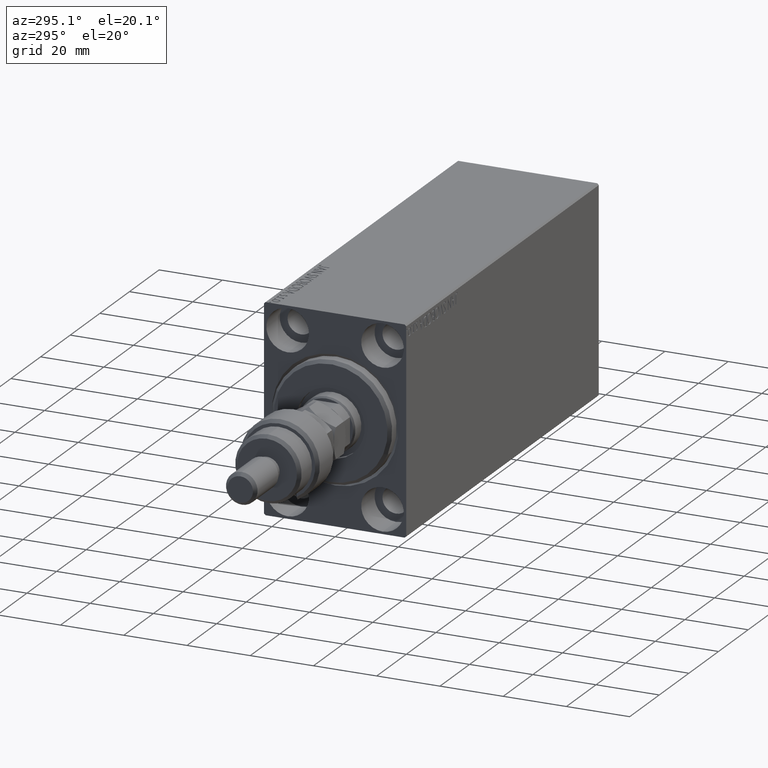
[diagram: clean part render]
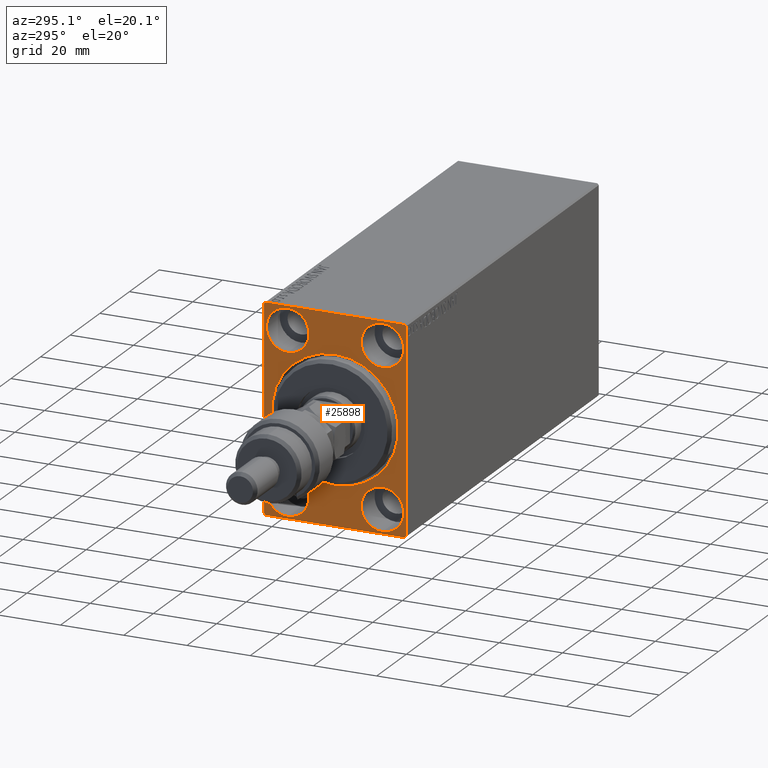
[diagram: same view with one face highlighted and labeled with its STEP entity id]
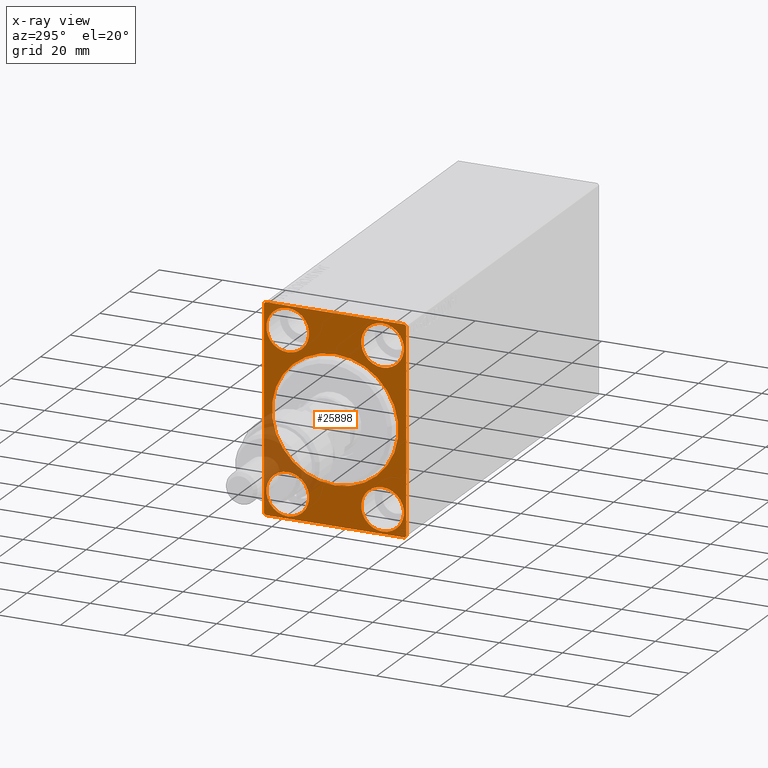
[diagram: x-ray of the same camera — body ghosted, the highlighted face saturated]
A machine part, auxiliary view. The second image highlights one B-rep face of the part: STEP entity #25898.
The next image is the same camera in x-ray: the body ghosted, the highlighted face saturated — about 13% of this face is hidden behind the body in this view.
In plain terms, the highlighted planar face has unit normal (1, 0, 0).
Its self-contained STEP definition (entity closure, byte-faithful):
#367 = CARTESIAN_POINT ( 'NONE',  ( 0.000000000000000000, -14.99999999999999645, 25.00000000000000000 ) ) ;
#705 = ORIENTED_EDGE ( 'NONE', *, *, #26048, .T. ) ;
#767 = DIRECTION ( 'NONE',  ( 0.000000000000000000, 0.000000000000000000, 1.000000000000000000 ) ) ;
#1197 = DIRECTION ( 'NONE',  ( 0.000000000000000000, 0.000000000000000000, 1.000000000000000000 ) ) ;
#1326 = EDGE_CURVE ( 'NONE', #7081, #15602, #21490, .T. ) ;
#1345 = DIRECTION ( 'NONE',  ( 1.000000000000000000, 0.000000000000000000, 0.000000000000000000 ) ) ;
#1741 = AXIS2_PLACEMENT_3D ( 'NONE', #23970, #34328, #38341 ) ;
#1795 = CARTESIAN_POINT ( 'NONE',  ( 0.000000000000000000, 22.00000000000002132, 32.50000000000000000 ) ) ;
#2358 = FACE_BOUND ( 'NONE', #26141, .T. ) ;
#2482 = CARTESIAN_POINT ( 'NONE',  ( 0.000000000000000000, -22.50000000000000711, 32.49999999999999289 ) ) ;
#2609 = VERTEX_POINT ( 'NONE', #45670 ) ;
#2643 = EDGE_LOOP ( 'NONE', ( #35283, #25397 ) ) ;
#3245 = FACE_OUTER_BOUND ( 'NONE', #25453, .T. ) ;
#3533 = CARTESIAN_POINT ( 'NONE',  ( 0.000000000000000000, -15.00000000000000355, -25.00000000000000000 ) ) ;
#3731 = EDGE_LOOP ( 'NONE', ( #43376, #38233 ) ) ;
#3913 = CARTESIAN_POINT ( 'NONE',  ( 0.000000000000000000, 22.49999999999999289, 32.00000000000004974 ) ) ;
#4154 = DIRECTION ( 'NONE',  ( 1.000000000000000000, 0.000000000000000000, 0.000000000000000000 ) ) ;
#4270 = CIRCLE ( 'NONE', #15543, 6.749999999999999112 ) ;
#4395 = DIRECTION ( 'NONE',  ( -0.000000000000000000, 0.7071067811865622277, -0.7071067811865328068 ) ) ;
#4617 = ORIENTED_EDGE ( 'NONE', *, *, #1326, .F. ) ;
#4831 = CIRCLE ( 'NONE', #37955, 6.749999999999999112 ) ;
#5072 = VECTOR ( 'NONE', #27044, 1000.000000000000114 ) ;
#5207 = VECTOR ( 'NONE', #23398, 1000.000000000000114 ) ;
#5352 = CIRCLE ( 'NONE', #12896, 20.00000000000000355 ) ;
#5765 = VERTEX_POINT ( 'NONE', #31590 ) ;
#5971 = AXIS2_PLACEMENT_3D ( 'NONE', #41402, #1345, #20210 ) ;
#6253 = LINE ( 'NONE', #2482, #10561 ) ;
#6663 = VERTEX_POINT ( 'NONE', #7445 ) ;
#6835 = ORIENTED_EDGE ( 'NONE', *, *, #45509, .F. ) ;
#6914 = AXIS2_PLACEMENT_3D ( 'NONE', #40349, #8997, #767 ) ;
#7081 = VERTEX_POINT ( 'NONE', #21902 ) ;
#7287 = DIRECTION ( 'NONE',  ( 0.000000000000000000, -1.067522139062650425E-16, 1.000000000000000000 ) ) ;
#7445 = CARTESIAN_POINT ( 'NONE',  ( 0.000000000000000000, -15.00000000000000355, -31.75000000000000000 ) ) ;
#7464 = LINE ( 'NONE', #43744, #15162 ) ;
#8331 = EDGE_CURVE ( 'NONE', #6663, #23838, #30714, .T. ) ;
#8335 = CARTESIAN_POINT ( 'NONE',  ( 0.000000000000000000, 22.50000000000000000, -32.00000000000002132 ) ) ;
#8392 = DIRECTION ( 'NONE',  ( -0.000000000000000000, -0.7071067811865376918, 0.7071067811865573427 ) ) ;
#8605 = CIRCLE ( 'NONE', #35677, 6.749999999999999112 ) ;
#8973 = VERTEX_POINT ( 'NONE', #1795 ) ;
#8997 = DIRECTION ( 'NONE',  ( -1.000000000000000000, 0.000000000000000000, 0.000000000000000000 ) ) ;
#9424 = FACE_BOUND ( 'NONE', #17125, .T. ) ;
#10299 = PLANE ( 'NONE',  #34568 ) ;
#10556 = CARTESIAN_POINT ( 'NONE',  ( 0.000000000000000000, -15.00000000000000355, -18.25000000000000355 ) ) ;
#10561 = VECTOR ( 'NONE', #28637, 1000.000000000000000 ) ;
#10948 = EDGE_CURVE ( 'NONE', #15122, #5765, #23254, .T. ) ;
#11099 = EDGE_CURVE ( 'NONE', #22692, #29209, #45096, .T. ) ;
#11231 = CARTESIAN_POINT ( 'NONE',  ( 0.000000000000000000, 0.000000000000000000, 0.000000000000000000 ) ) ;
#11543 = CARTESIAN_POINT ( 'NONE',  ( 0.000000000000000000, 22.00000000000000000, -32.50000000000000711 ) ) ;
#12207 = CARTESIAN_POINT ( 'NONE',  ( 0.000000000000000000, -22.50000000000000711, 31.99999999999999289 ) ) ;
#12887 = VECTOR ( 'NONE', #7287, 1000.000000000000000 ) ;
#12896 = AXIS2_PLACEMENT_3D ( 'NONE', #11231, #4154, #39741 ) ;
#13398 = VERTEX_POINT ( 'NONE', #38684 ) ;
#13441 = DIRECTION ( 'NONE',  ( -1.000000000000000000, 0.000000000000000000, 0.000000000000000000 ) ) ;
#14102 = ORIENTED_EDGE ( 'NONE', *, *, #21025, .T. ) ;
#14542 = VERTEX_POINT ( 'NONE', #44324 ) ;
#14893 = CARTESIAN_POINT ( 'NONE',  ( 0.000000000000000000, -14.99999999999999645, 25.00000000000000000 ) ) ;
#14953 = ORIENTED_EDGE ( 'NONE', *, *, #32163, .T. ) ;
#15027 = ORIENTED_EDGE ( 'NONE', *, *, #42059, .F. ) ;
#15122 = VERTEX_POINT ( 'NONE', #35166 ) ;
#15162 = VECTOR ( 'NONE', #8392, 1000.000000000000114 ) ;
#15543 = AXIS2_PLACEMENT_3D ( 'NONE', #3533, #13441, #27811 ) ;
#15602 = VERTEX_POINT ( 'NONE', #11543 ) ;
#15944 = EDGE_CURVE ( 'NONE', #2609, #35827, #44636, .T. ) ;
#16745 = FACE_BOUND ( 'NONE', #3731, .T. ) ;
#17125 = EDGE_LOOP ( 'NONE', ( #18087, #6835 ) ) ;
#17344 = EDGE_CURVE ( 'NONE', #35827, #2609, #4831, .T. ) ;
#17544 = EDGE_CURVE ( 'NONE', #29209, #22692, #8605, .T. ) ;
#17770 = EDGE_CURVE ( 'NONE', #23838, #6663, #4270, .T. ) ;
#18017 = VECTOR ( 'NONE', #4395, 1000.000000000000000 ) ;
#18087 = ORIENTED_EDGE ( 'NONE', *, *, #43081, .F. ) ;
#18569 = ORIENTED_EDGE ( 'NONE', *, *, #28390, .F. ) ;
#18774 = AXIS2_PLACEMENT_3D ( 'NONE', #367, #29573, #43262 ) ;
#19253 = VERTEX_POINT ( 'NONE', #43316 ) ;
#19434 = LINE ( 'NONE', #27194, #21681 ) ;
#19485 = VERTEX_POINT ( 'NONE', #3913 ) ;
#19671 = DIRECTION ( 'NONE',  ( 0.000000000000000000, -1.000000000000000000, -1.541976423090495387E-16 ) ) ;
#19760 = CIRCLE ( 'NONE', #33296, 6.749999999999999112 ) ;
#19843 = ORIENTED_EDGE ( 'NONE', *, *, #21815, .F. ) ;
#20210 = DIRECTION ( 'NONE',  ( 0.000000000000000000, 0.000000000000000000, -1.000000000000000000 ) ) ;
#20281 = FACE_BOUND ( 'NONE', #36316, .T. ) ;
#20647 = CARTESIAN_POINT ( 'NONE',  ( 0.000000000000000000, -22.50000000000000711, -32.00000000000002132 ) ) ;
#20686 = ORIENTED_EDGE ( 'NONE', *, *, #25570, .T. ) ;
#21025 = EDGE_CURVE ( 'NONE', #14542, #19253, #44488, .T. ) ;
#21218 = CIRCLE ( 'NONE', #6914, 6.749999999999999112 ) ;
#21490 = LINE ( 'NONE', #35604, #37348 ) ;
#21681 = VECTOR ( 'NONE', #19671, 1000.000000000000000 ) ;
#21815 = EDGE_CURVE ( 'NONE', #8973, #19253, #19434, .T. ) ;
#21902 = CARTESIAN_POINT ( 'NONE',  ( 0.000000000000000000, -22.00000000000003197, -32.50000000000000711 ) ) ;
#22692 = VERTEX_POINT ( 'NONE', #35880 ) ;
#23183 = CARTESIAN_POINT ( 'NONE',  ( 0.000000000000000000, -15.00000000000000355, -25.00000000000000000 ) ) ;
#23254 = CIRCLE ( 'NONE', #5971, 20.00000000000000355 ) ;
#23398 = DIRECTION ( 'NONE',  ( 0.000000000000000000, -0.7071067811865474617, -0.7071067811865474617 ) ) ;
#23838 = VERTEX_POINT ( 'NONE', #10556 ) ;
#23869 = DIRECTION ( 'NONE',  ( 0.000000000000000000, 0.000000000000000000, 1.000000000000000000 ) ) ;
#23970 = CARTESIAN_POINT ( 'NONE',  ( 0.000000000000000000, 15.00000000000000355, 25.00000000000000000 ) ) ;
#24385 = ORIENTED_EDGE ( 'NONE', *, *, #17544, .F. ) ;
#25155 = DIRECTION ( 'NONE',  ( 0.000000000000000000, 0.000000000000000000, -1.000000000000000000 ) ) ;
#25186 = LINE ( 'NONE', #39554, #12887 ) ;
#25369 = ORIENTED_EDGE ( 'NONE', *, *, #10948, .T. ) ;
#25397 = ORIENTED_EDGE ( 'NONE', *, *, #8331, .F. ) ;
#25453 = EDGE_LOOP ( 'NONE', ( #18569, #14102, #19843, #705, #15027, #20686, #4617, #14953 ) ) ;
#25570 = EDGE_CURVE ( 'NONE', #37897, #15602, #44607, .T. ) ;
#25733 = DIRECTION ( 'NONE',  ( -1.000000000000000000, 0.000000000000000000, 0.000000000000000000 ) ) ;
#25898 = ADVANCED_FACE ( 'NONE', ( #20281, #9424, #2358, #16745, #39053, #3245 ), #10299, .F. ) ;
#26048 = EDGE_CURVE ( 'NONE', #8973, #19485, #39516, .T. ) ;
#26141 = EDGE_LOOP ( 'NONE', ( #40222, #24385 ) ) ;
#26546 = ORIENTED_EDGE ( 'NONE', *, *, #32129, .T. ) ;
#27044 = DIRECTION ( 'NONE',  ( -0.000000000000000000, 0.7071067811865474617, 0.7071067811865474617 ) ) ;
#27194 = CARTESIAN_POINT ( 'NONE',  ( 0.000000000000000000, 22.49999999999999289, 32.50000000000000000 ) ) ;
#27811 = DIRECTION ( 'NONE',  ( 0.000000000000000000, 0.000000000000000000, 1.000000000000000000 ) ) ;
#28288 = CARTESIAN_POINT ( 'NONE',  ( 0.000000000000000000, 14.99999999999999645, -25.00000000000000000 ) ) ;
#28390 = EDGE_CURVE ( 'NONE', #14542, #28474, #6253, .T. ) ;
#28474 = VERTEX_POINT ( 'NONE', #20647 ) ;
#28539 = CARTESIAN_POINT ( 'NONE',  ( 0.000000000000000000, 14.99999999999999645, -31.75000000000000000 ) ) ;
#28637 = DIRECTION ( 'NONE',  ( 0.000000000000000000, 0.000000000000000000, -1.000000000000000000 ) ) ;
#29144 = CARTESIAN_POINT ( 'NONE',  ( 0.000000000000000000, 22.00000000000002132, 32.50000000000000000 ) ) ;
#29209 = VERTEX_POINT ( 'NONE', #30856 ) ;
#29573 = DIRECTION ( 'NONE',  ( -1.000000000000000000, 0.000000000000000000, 0.000000000000000000 ) ) ;
#30714 = CIRCLE ( 'NONE', #45023, 6.749999999999999112 ) ;
#30856 = CARTESIAN_POINT ( 'NONE',  ( 0.000000000000000000, -14.99999999999999645, 18.25000000000000355 ) ) ;
#31590 = CARTESIAN_POINT ( 'NONE',  ( 0.000000000000000000, 2.449293598294706907E-15, -20.00000000000000355 ) ) ;
#31817 = DIRECTION ( 'NONE',  ( -1.000000000000000000, 0.000000000000000000, 0.000000000000000000 ) ) ;
#32129 = EDGE_CURVE ( 'NONE', #5765, #15122, #5352, .T. ) ;
#32163 = EDGE_CURVE ( 'NONE', #7081, #28474, #7464, .T. ) ;
#33296 = AXIS2_PLACEMENT_3D ( 'NONE', #28288, #31817, #42672 ) ;
#34328 = DIRECTION ( 'NONE',  ( -1.000000000000000000, 0.000000000000000000, 0.000000000000000000 ) ) ;
#34568 = AXIS2_PLACEMENT_3D ( 'NONE', #46369, #41706, #25155 ) ;
#34696 = CARTESIAN_POINT ( 'NONE',  ( 0.000000000000000000, 15.00000000000000355, 25.00000000000000000 ) ) ;
#34925 = DIRECTION ( 'NONE',  ( -1.000000000000000000, 0.000000000000000000, 0.000000000000000000 ) ) ;
#35166 = CARTESIAN_POINT ( 'NONE',  ( 0.000000000000000000, 0.000000000000000000, 20.00000000000000355 ) ) ;
#35283 = ORIENTED_EDGE ( 'NONE', *, *, #17770, .F. ) ;
#35604 = CARTESIAN_POINT ( 'NONE',  ( 0.000000000000000000, -22.50000000000000711, -32.50000000000000711 ) ) ;
#35677 = AXIS2_PLACEMENT_3D ( 'NONE', #14893, #25733, #1197 ) ;
#35827 = VERTEX_POINT ( 'NONE', #42741 ) ;
#35880 = CARTESIAN_POINT ( 'NONE',  ( 0.000000000000000000, -14.99999999999999645, 31.75000000000000000 ) ) ;
#36316 = EDGE_LOOP ( 'NONE', ( #25369, #26546 ) ) ;
#37348 = VECTOR ( 'NONE', #39610, 1000.000000000000000 ) ;
#37544 = DIRECTION ( 'NONE',  ( -1.000000000000000000, 0.000000000000000000, 0.000000000000000000 ) ) ;
#37897 = VERTEX_POINT ( 'NONE', #42701 ) ;
#37955 = AXIS2_PLACEMENT_3D ( 'NONE', #34696, #34925, #23869 ) ;
#38233 = ORIENTED_EDGE ( 'NONE', *, *, #15944, .F. ) ;
#38341 = DIRECTION ( 'NONE',  ( 0.000000000000000000, 0.000000000000000000, 1.000000000000000000 ) ) ;
#38684 = CARTESIAN_POINT ( 'NONE',  ( 0.000000000000000000, 14.99999999999999645, -18.25000000000000355 ) ) ;
#39053 = FACE_BOUND ( 'NONE', #2643, .T. ) ;
#39516 = LINE ( 'NONE', #29144, #18017 ) ;
#39554 = CARTESIAN_POINT ( 'NONE',  ( 0.000000000000000000, 22.50000000000000000, -32.50000000000000711 ) ) ;
#39610 = DIRECTION ( 'NONE',  ( 0.000000000000000000, 1.000000000000000000, 0.000000000000000000 ) ) ;
#39741 = DIRECTION ( 'NONE',  ( 0.000000000000000000, 0.000000000000000000, -1.000000000000000000 ) ) ;
#40222 = ORIENTED_EDGE ( 'NONE', *, *, #11099, .F. ) ;
#40349 = CARTESIAN_POINT ( 'NONE',  ( 0.000000000000000000, 14.99999999999999645, -25.00000000000000000 ) ) ;
#41402 = CARTESIAN_POINT ( 'NONE',  ( 0.000000000000000000, 0.000000000000000000, 0.000000000000000000 ) ) ;
#41706 = DIRECTION ( 'NONE',  ( 1.000000000000000000, 0.000000000000000000, 0.000000000000000000 ) ) ;
#42059 = EDGE_CURVE ( 'NONE', #37897, #19485, #25186, .T. ) ;
#42672 = DIRECTION ( 'NONE',  ( 0.000000000000000000, 0.000000000000000000, 1.000000000000000000 ) ) ;
#42701 = CARTESIAN_POINT ( 'NONE',  ( 0.000000000000000000, 22.50000000000000000, -32.00000000000002132 ) ) ;
#42741 = CARTESIAN_POINT ( 'NONE',  ( 0.000000000000000000, 15.00000000000000355, 31.75000000000000000 ) ) ;
#43081 = EDGE_CURVE ( 'NONE', #13398, #46431, #21218, .T. ) ;
#43262 = DIRECTION ( 'NONE',  ( 0.000000000000000000, 0.000000000000000000, 1.000000000000000000 ) ) ;
#43316 = CARTESIAN_POINT ( 'NONE',  ( 0.000000000000000000, -21.99999999999999289, 32.49999999999999289 ) ) ;
#43376 = ORIENTED_EDGE ( 'NONE', *, *, #17344, .F. ) ;
#43744 = CARTESIAN_POINT ( 'NONE',  ( 0.000000000000000000, -22.00000000000003197, -32.50000000000000711 ) ) ;
#44163 = DIRECTION ( 'NONE',  ( 0.000000000000000000, 0.000000000000000000, 1.000000000000000000 ) ) ;
#44324 = CARTESIAN_POINT ( 'NONE',  ( 0.000000000000000000, -22.50000000000000711, 31.99999999999999289 ) ) ;
#44488 = LINE ( 'NONE', #12207, #5072 ) ;
#44607 = LINE ( 'NONE', #8335, #5207 ) ;
#44636 = CIRCLE ( 'NONE', #1741, 6.749999999999999112 ) ;
#45023 = AXIS2_PLACEMENT_3D ( 'NONE', #23183, #37544, #44163 ) ;
#45096 = CIRCLE ( 'NONE', #18774, 6.749999999999999112 ) ;
#45509 = EDGE_CURVE ( 'NONE', #46431, #13398, #19760, .T. ) ;
#45670 = CARTESIAN_POINT ( 'NONE',  ( 0.000000000000000000, 15.00000000000000355, 18.25000000000000355 ) ) ;
#46369 = CARTESIAN_POINT ( 'NONE',  ( 0.000000000000000000, 0.000000000000000000, 0.000000000000000000 ) ) ;
#46431 = VERTEX_POINT ( 'NONE', #28539 ) ;